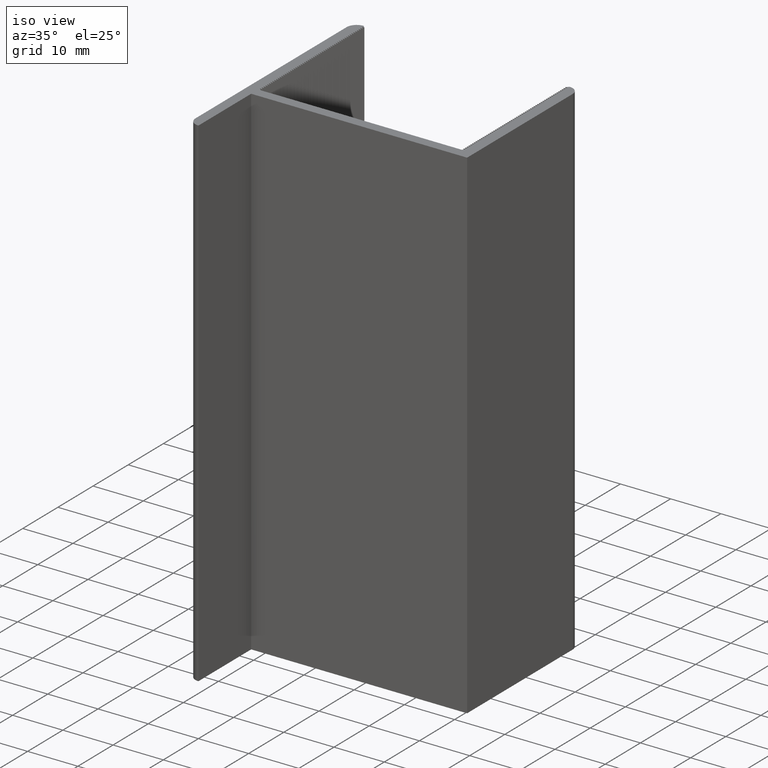
[diagram: clean part render]
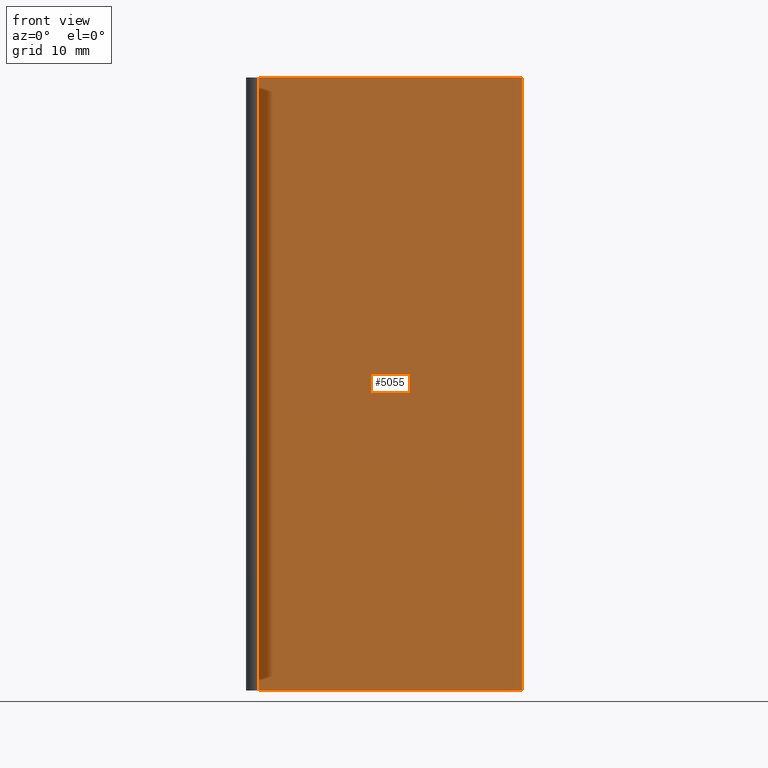
[diagram: tour spotlight — one face highlighted and labeled with its STEP entity id]
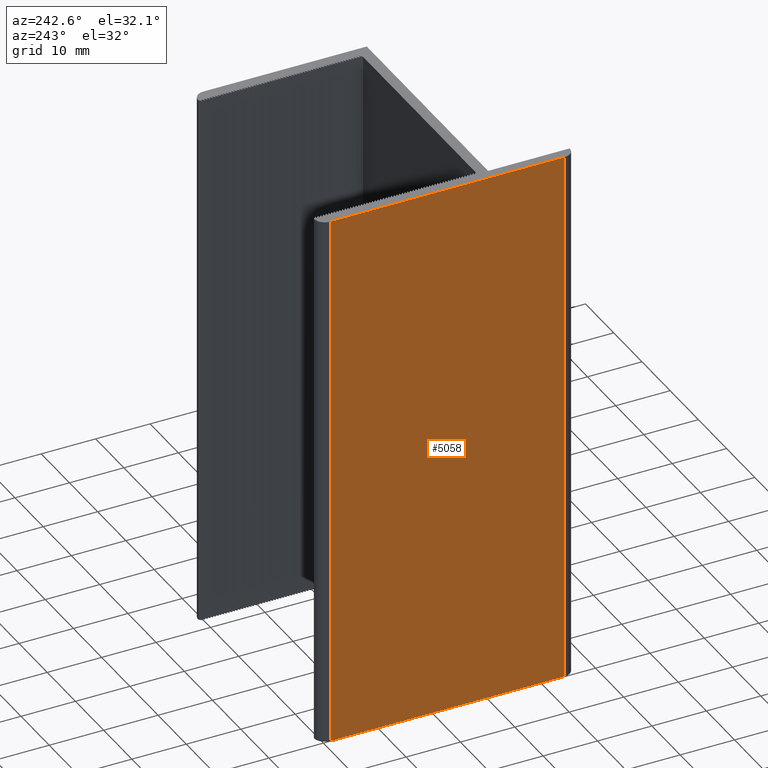
[diagram: tour spotlight — one face highlighted and labeled with its STEP entity id]
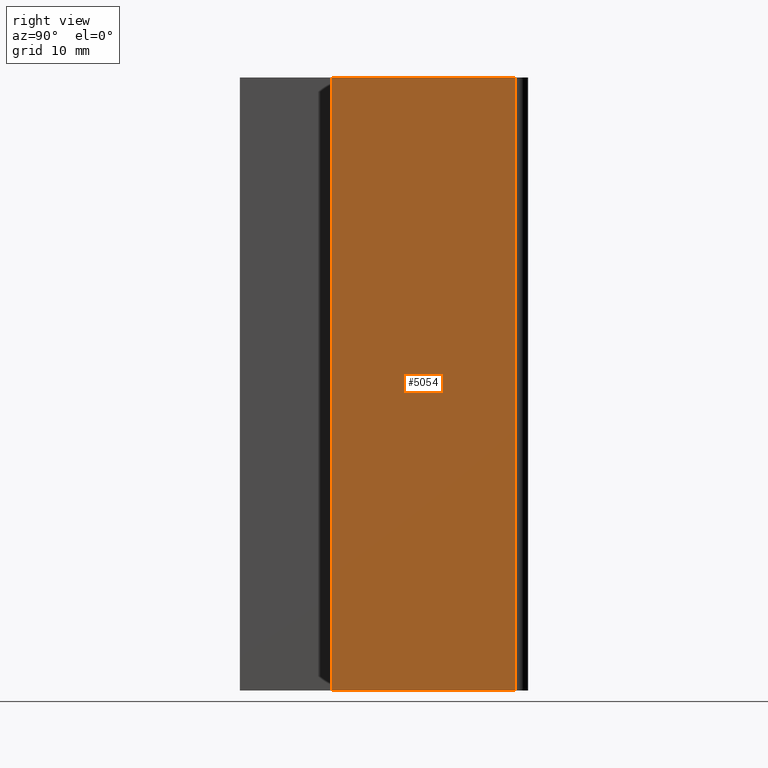
[diagram: tour spotlight — one face highlighted and labeled with its STEP entity id]
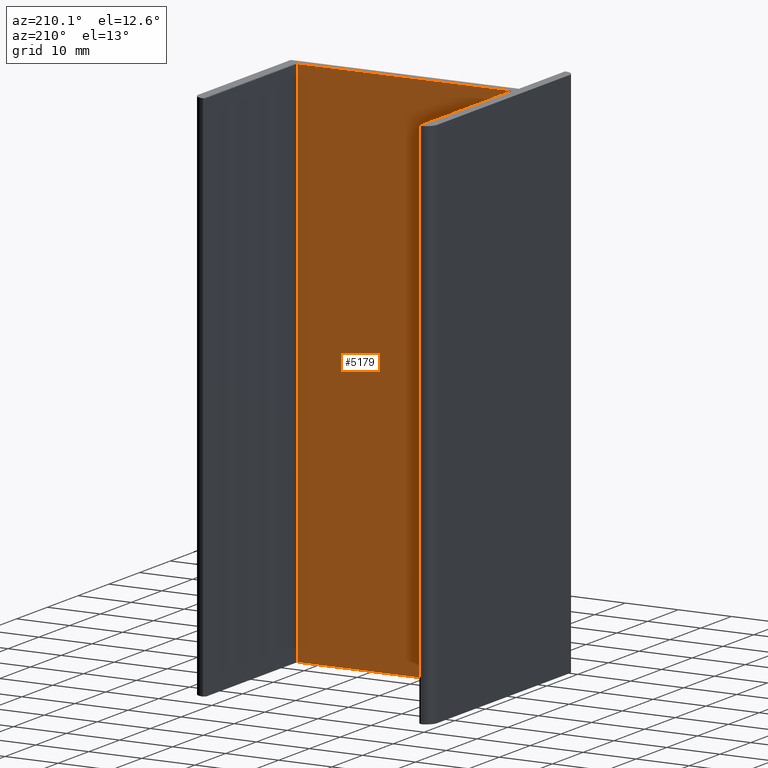
[diagram: tour spotlight — one face highlighted and labeled with its STEP entity id]
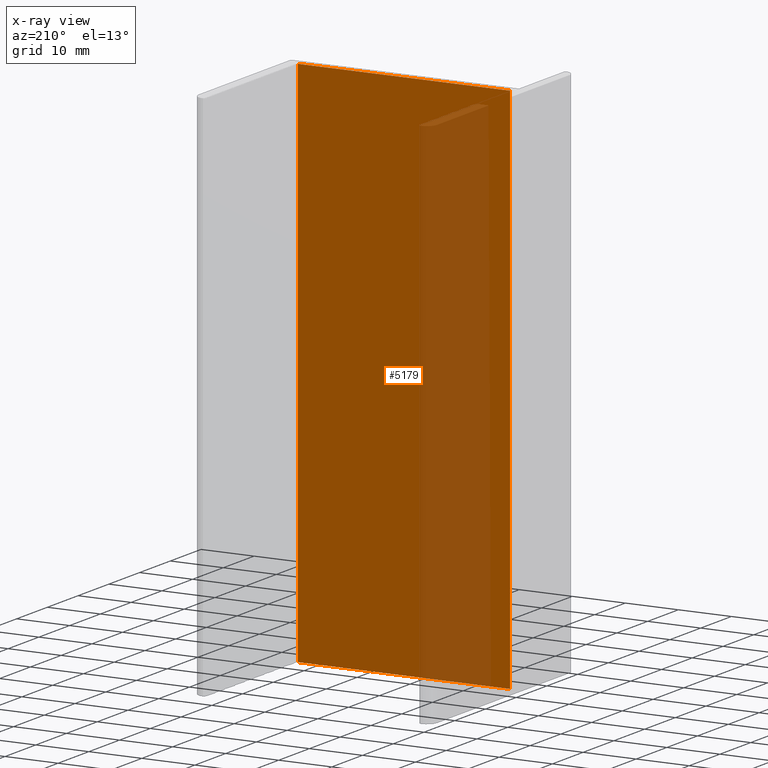
[diagram: x-ray of the same camera — body ghosted, this tour face saturated]
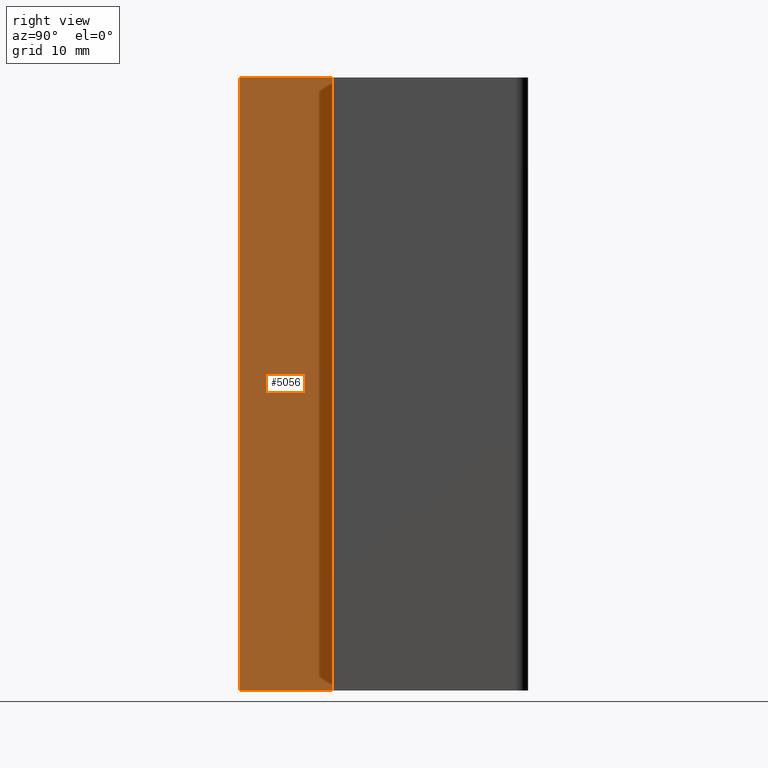
[diagram: tour spotlight — one face highlighted and labeled with its STEP entity id]
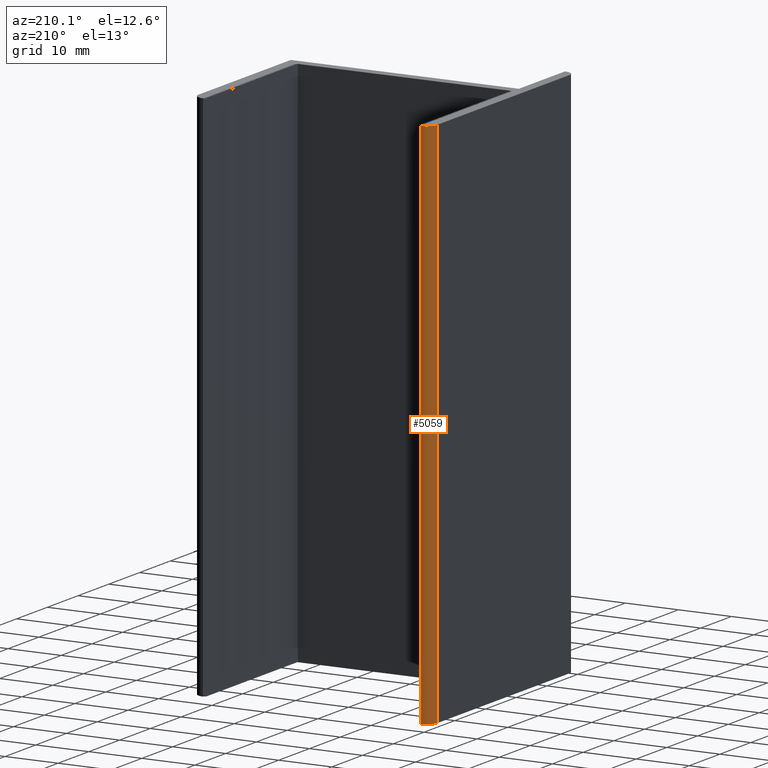
[diagram: tour spotlight — one face highlighted and labeled with its STEP entity id]
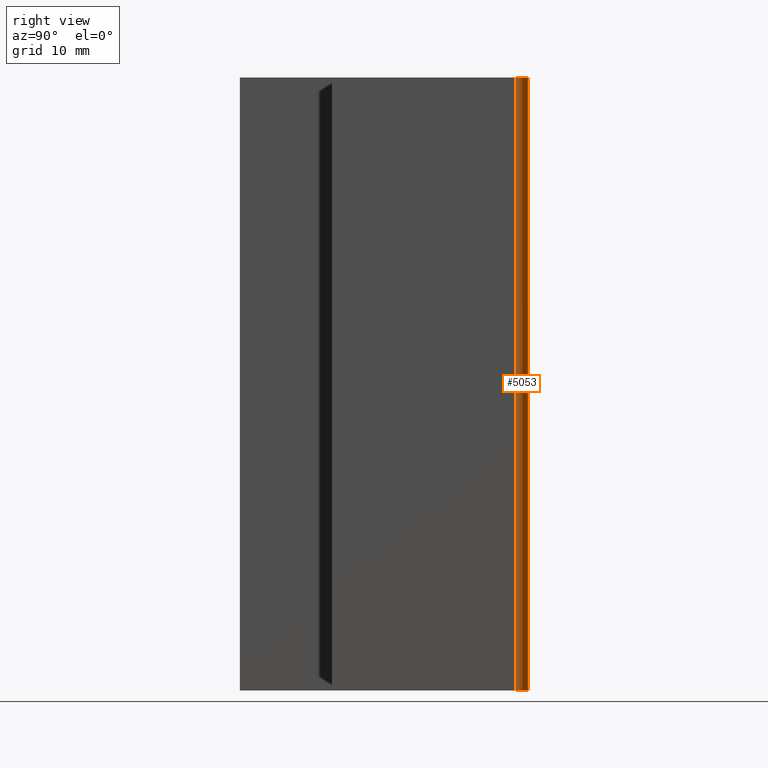
[diagram: tour spotlight — one face highlighted and labeled with its STEP entity id]
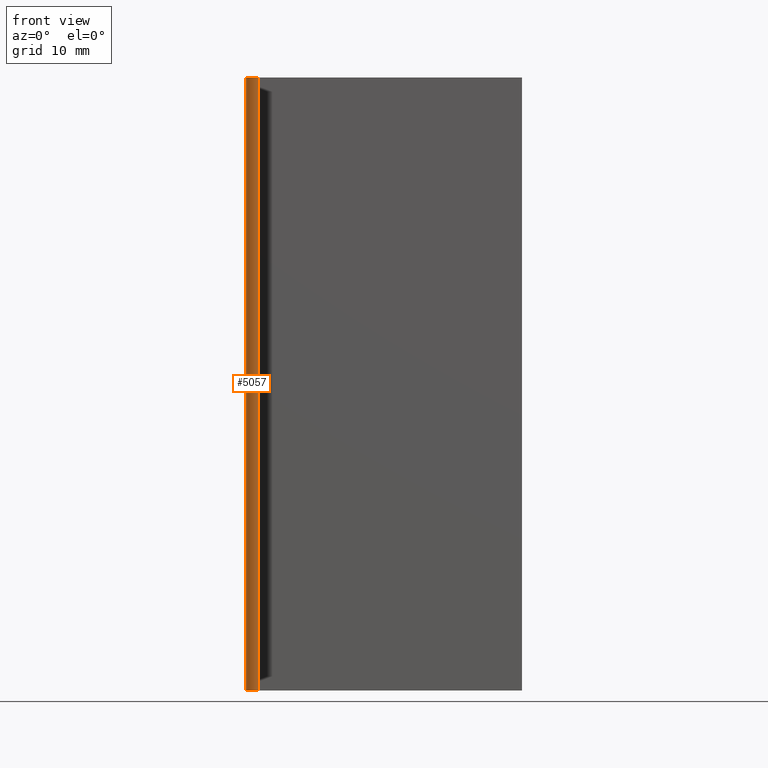
[diagram: tour spotlight — one face highlighted and labeled with its STEP entity id]
A machine part: a face-by-face anatomy tour. The part has 248 B-rep faces; the first image is the clean iso view, then the 8 largest visible faces are spotlighted one at a time (largest first), each with its STEP entity span.

Face 1 — front view, entity #5055. In plain terms, the highlighted planar face has unit normal (0, -1, 0).
Definition (entity closure, byte-faithful):
#144=FACE_OUTER_BOUND('',#392,.T.);
#392=EDGE_LOOP('',(#3694,#3695,#3696,#3697));
#878=LINE('',#7404,#1610);
#879=LINE('',#7407,#1611);
#880=LINE('',#7409,#1612);
#881=LINE('',#7410,#1613);
#1610=VECTOR('',#6043,100.);
#1611=VECTOR('',#6046,43.);
#1612=VECTOR('',#6047,43.);
#1613=VECTOR('',#6048,100.);
#2224=VERTEX_POINT('',#7400);
#2225=VERTEX_POINT('',#7402);
#2226=VERTEX_POINT('',#7406);
#2227=VERTEX_POINT('',#7408);
#2836=EDGE_CURVE('',#2224,#2225,#878,.T.);
#2837=EDGE_CURVE('',#2224,#2226,#879,.T.);
#2838=EDGE_CURVE('',#2227,#2225,#880,.T.);
#2839=EDGE_CURVE('',#2226,#2227,#881,.T.);
#3694=ORIENTED_EDGE('',*,*,#2837,.F.);
#3695=ORIENTED_EDGE('',*,*,#2836,.T.);
#3696=ORIENTED_EDGE('',*,*,#2838,.F.);
#3697=ORIENTED_EDGE('',*,*,#2839,.F.);
#4809=PLANE('',#5307);
#5055=ADVANCED_FACE('',(#144),#4809,.T.);
#5307=AXIS2_PLACEMENT_3D('',#7405,#6044,#6045);
#6043=DIRECTION('',(0.,0.,1.));
#6044=DIRECTION('center_axis',(0.,-1.,0.));
#6045=DIRECTION('ref_axis',(1.,0.,0.));
#6046=DIRECTION('',(-1.,0.,0.));
#6047=DIRECTION('',(1.,0.,0.));
#6048=DIRECTION('',(0.,0.,1.));
#7400=CARTESIAN_POINT('',(22.5,0.,0.));
#7402=CARTESIAN_POINT('',(22.5,0.,100.));
#7404=CARTESIAN_POINT('',(22.5,0.,0.));
#7405=CARTESIAN_POINT('Origin',(-20.5,0.,0.));
#7406=CARTESIAN_POINT('',(-20.5,0.,0.));
#7407=CARTESIAN_POINT('',(22.5,0.,0.));
#7408=CARTESIAN_POINT('',(-20.5,0.,100.));
#7409=CARTESIAN_POINT('',(22.5,0.,100.));
#7410=CARTESIAN_POINT('',(-20.5,0.,0.));

Face 2 — auxiliary view, entity #5058. In plain terms, the highlighted planar face has unit normal (-1, 0, 0).
Definition (entity closure, byte-faithful):
#147=FACE_OUTER_BOUND('',#395,.T.);
#395=EDGE_LOOP('',(#3706,#3707,#3708,#3709));
#885=LINE('',#7422,#1617);
#886=LINE('',#7425,#1618);
#887=LINE('',#7427,#1619);
#888=LINE('',#7428,#1620);
#1617=VECTOR('',#6060,100.);
#1618=VECTOR('',#6063,43.);
#1619=VECTOR('',#6064,43.);
#1620=VECTOR('',#6065,100.);
#2230=VERTEX_POINT('',#7418);
#2231=VERTEX_POINT('',#7420);
#2232=VERTEX_POINT('',#7424);
#2233=VERTEX_POINT('',#7426);
#2845=EDGE_CURVE('',#2230,#2231,#885,.T.);
#2846=EDGE_CURVE('',#2230,#2232,#886,.T.);
#2847=EDGE_CURVE('',#2233,#2231,#887,.T.);
#2848=EDGE_CURVE('',#2232,#2233,#888,.T.);
#3706=ORIENTED_EDGE('',*,*,#2846,.F.);
#3707=ORIENTED_EDGE('',*,*,#2845,.T.);
#3708=ORIENTED_EDGE('',*,*,#2847,.F.);
#3709=ORIENTED_EDGE('',*,*,#2848,.F.);
#4811=PLANE('',#5312);
#5058=ADVANCED_FACE('',(#147),#4811,.T.);
#5312=AXIS2_PLACEMENT_3D('',#7423,#6061,#6062);
#6060=DIRECTION('',(0.,0.,1.));
#6061=DIRECTION('center_axis',(-1.,0.,0.));
#6062=DIRECTION('ref_axis',(0.,-1.,0.));
#6063=DIRECTION('',(0.,1.,0.));
#6064=DIRECTION('',(0.,-1.,0.));
#6065=DIRECTION('',(0.,0.,1.));
#7418=CARTESIAN_POINT('',(-22.5,-13.,0.));
#7420=CARTESIAN_POINT('',(-22.5,-13.,100.));
#7422=CARTESIAN_POINT('',(-22.5,-13.,0.));
#7423=CARTESIAN_POINT('Origin',(-22.5,30.,0.));
#7424=CARTESIAN_POINT('',(-22.5,30.,0.));
#7425=CARTESIAN_POINT('',(-22.5,-13.,0.));
#7426=CARTESIAN_POINT('',(-22.5,30.,100.));
#7427=CARTESIAN_POINT('',(-22.5,-13.,100.));
#7428=CARTESIAN_POINT('',(-22.5,30.,0.));

Face 3 — right view, entity #5054. In plain terms, the highlighted planar face has unit normal (1, 0, 0).
Definition (entity closure, byte-faithful):
#143=FACE_OUTER_BOUND('',#391,.T.);
#391=EDGE_LOOP('',(#3690,#3691,#3692,#3693));
#875=LINE('',#7398,#1607);
#876=LINE('',#7401,#1608);
#877=LINE('',#7403,#1609);
#878=LINE('',#7404,#1610);
#1607=VECTOR('',#6038,100.);
#1608=VECTOR('',#6041,30.);
#1609=VECTOR('',#6042,30.);
#1610=VECTOR('',#6043,100.);
#2222=VERTEX_POINT('',#7394);
#2223=VERTEX_POINT('',#7396);
#2224=VERTEX_POINT('',#7400);
#2225=VERTEX_POINT('',#7402);
#2833=EDGE_CURVE('',#2222,#2223,#875,.T.);
#2834=EDGE_CURVE('',#2222,#2224,#876,.T.);
#2835=EDGE_CURVE('',#2225,#2223,#877,.T.);
#2836=EDGE_CURVE('',#2224,#2225,#878,.T.);
#3690=ORIENTED_EDGE('',*,*,#2834,.F.);
#3691=ORIENTED_EDGE('',*,*,#2833,.T.);
#3692=ORIENTED_EDGE('',*,*,#2835,.F.);
#3693=ORIENTED_EDGE('',*,*,#2836,.F.);
#4808=PLANE('',#5306);
#5054=ADVANCED_FACE('',(#143),#4808,.T.);
#5306=AXIS2_PLACEMENT_3D('',#7399,#6039,#6040);
#6038=DIRECTION('',(0.,0.,1.));
#6039=DIRECTION('center_axis',(1.,0.,0.));
#6040=DIRECTION('ref_axis',(0.,1.,0.));
#6041=DIRECTION('',(0.,-1.,0.));
#6042=DIRECTION('',(0.,1.,0.));
#6043=DIRECTION('',(0.,0.,1.));
#7394=CARTESIAN_POINT('',(22.5,30.,0.));
#7396=CARTESIAN_POINT('',(22.5,30.,100.));
#7398=CARTESIAN_POINT('',(22.5,30.,0.));
#7399=CARTESIAN_POINT('Origin',(22.5,0.,0.));
#7400=CARTESIAN_POINT('',(22.5,0.,0.));
#7401=CARTESIAN_POINT('',(22.5,30.,0.));
#7402=CARTESIAN_POINT('',(22.5,0.,100.));
#7403=CARTESIAN_POINT('',(22.5,30.,100.));
#7404=CARTESIAN_POINT('',(22.5,0.,0.));

Face 4 — auxiliary view, entity #5179. An x-ray twin of the same camera follows (body ghosted, this face saturated) — the face is partly hidden behind the body. In plain terms, the highlighted planar face has unit normal (0, 1, 0).
Definition (entity closure, byte-faithful):
#268=FACE_OUTER_BOUND('',#516,.T.);
#516=EDGE_LOOP('',(#4190,#4191,#4192,#4193));
#1246=LINE('',#8148,#1978);
#1247=LINE('',#8151,#1979);
#1248=LINE('',#8153,#1980);
#1249=LINE('',#8154,#1981);
#1978=VECTOR('',#6667,100.);
#1979=VECTOR('',#6670,40.);
#1980=VECTOR('',#6671,40.);
#1981=VECTOR('',#6672,100.);
#2472=VERTEX_POINT('',#8144);
#2473=VERTEX_POINT('',#8146);
#2474=VERTEX_POINT('',#8150);
#2475=VERTEX_POINT('',#8152);
#3208=EDGE_CURVE('',#2472,#2473,#1246,.T.);
#3209=EDGE_CURVE('',#2472,#2474,#1247,.T.);
#3210=EDGE_CURVE('',#2475,#2473,#1248,.T.);
#3211=EDGE_CURVE('',#2474,#2475,#1249,.T.);
#4190=ORIENTED_EDGE('',*,*,#3209,.F.);
#4191=ORIENTED_EDGE('',*,*,#3208,.T.);
#4192=ORIENTED_EDGE('',*,*,#3210,.F.);
#4193=ORIENTED_EDGE('',*,*,#3211,.F.);
#4931=PLANE('',#5435);
#5179=ADVANCED_FACE('',(#268),#4931,.T.);
#5435=AXIS2_PLACEMENT_3D('',#8149,#6668,#6669);
#6667=DIRECTION('',(0.,0.,1.));
#6668=DIRECTION('center_axis',(0.,1.,0.));
#6669=DIRECTION('ref_axis',(-1.,0.,0.));
#6670=DIRECTION('',(1.,0.,0.));
#6671=DIRECTION('',(-1.,0.,0.));
#6672=DIRECTION('',(0.,0.,1.));
#8144=CARTESIAN_POINT('',(-20.,2.,0.));
#8146=CARTESIAN_POINT('',(-20.,2.,100.));
#8148=CARTESIAN_POINT('',(-20.,2.,0.));
#8149=CARTESIAN_POINT('Origin',(20.,2.,0.));
#8150=CARTESIAN_POINT('',(20.,2.,0.));
#8151=CARTESIAN_POINT('',(-20.,2.,0.));
#8152=CARTESIAN_POINT('',(20.,2.,100.));
#8153=CARTESIAN_POINT('',(-20.,2.,100.));
#8154=CARTESIAN_POINT('',(20.,2.,0.));

Face 5 — right view, entity #5056. In plain terms, the highlighted planar face has unit normal (1, 0, 0).
Definition (entity closure, byte-faithful):
#145=FACE_OUTER_BOUND('',#393,.T.);
#393=EDGE_LOOP('',(#3698,#3699,#3700,#3701));
#881=LINE('',#7410,#1613);
#882=LINE('',#7413,#1614);
#883=LINE('',#7415,#1615);
#884=LINE('',#7416,#1616);
#1613=VECTOR('',#6048,100.);
#1614=VECTOR('',#6051,15.);
#1615=VECTOR('',#6052,15.);
#1616=VECTOR('',#6053,100.);
#2226=VERTEX_POINT('',#7406);
#2227=VERTEX_POINT('',#7408);
#2228=VERTEX_POINT('',#7412);
#2229=VERTEX_POINT('',#7414);
#2839=EDGE_CURVE('',#2226,#2227,#881,.T.);
#2840=EDGE_CURVE('',#2226,#2228,#882,.T.);
#2841=EDGE_CURVE('',#2229,#2227,#883,.T.);
#2842=EDGE_CURVE('',#2228,#2229,#884,.T.);
#3698=ORIENTED_EDGE('',*,*,#2840,.F.);
#3699=ORIENTED_EDGE('',*,*,#2839,.T.);
#3700=ORIENTED_EDGE('',*,*,#2841,.F.);
#3701=ORIENTED_EDGE('',*,*,#2842,.F.);
#4810=PLANE('',#5308);
#5056=ADVANCED_FACE('',(#145),#4810,.T.);
#5308=AXIS2_PLACEMENT_3D('',#7411,#6049,#6050);
#6048=DIRECTION('',(0.,0.,1.));
#6049=DIRECTION('center_axis',(1.,0.,0.));
#6050=DIRECTION('ref_axis',(0.,1.,0.));
#6051=DIRECTION('',(0.,-1.,0.));
#6052=DIRECTION('',(0.,1.,0.));
#6053=DIRECTION('',(0.,0.,1.));
#7406=CARTESIAN_POINT('',(-20.5,0.,0.));
#7408=CARTESIAN_POINT('',(-20.5,0.,100.));
#7410=CARTESIAN_POINT('',(-20.5,0.,0.));
#7411=CARTESIAN_POINT('Origin',(-20.5,-15.,0.));
#7412=CARTESIAN_POINT('',(-20.5,-15.,0.));
#7413=CARTESIAN_POINT('',(-20.5,0.,0.));
#7414=CARTESIAN_POINT('',(-20.5,-15.,100.));
#7415=CARTESIAN_POINT('',(-20.5,0.,100.));
#7416=CARTESIAN_POINT('',(-20.5,-15.,0.));

Face 6 — auxiliary view, entity #5059. In plain terms, the highlighted cylindrical surface (edge-blend (fillet) strip) has radius 2 mm, axis along (0, 0, 1).
Definition (entity closure, byte-faithful):
#19=CIRCLE('',#5314,2.);
#20=CIRCLE('',#5315,2.);
#23=CYLINDRICAL_SURFACE('',#5313,2.);
#148=FACE_OUTER_BOUND('',#396,.T.);
#396=EDGE_LOOP('',(#3710,#3711,#3712,#3713));
#888=LINE('',#7428,#1620);
#889=LINE('',#7434,#1621);
#1620=VECTOR('',#6065,100.);
#1621=VECTOR('',#6072,100.);
#2232=VERTEX_POINT('',#7424);
#2233=VERTEX_POINT('',#7426);
#2234=VERTEX_POINT('',#7430);
#2235=VERTEX_POINT('',#7432);
#2848=EDGE_CURVE('',#2232,#2233,#888,.T.);
#2849=EDGE_CURVE('',#2232,#2234,#19,.T.);
#2850=EDGE_CURVE('',#2235,#2233,#20,.T.);
#2851=EDGE_CURVE('',#2234,#2235,#889,.T.);
#3710=ORIENTED_EDGE('',*,*,#2849,.F.);
#3711=ORIENTED_EDGE('',*,*,#2848,.T.);
#3712=ORIENTED_EDGE('',*,*,#2850,.F.);
#3713=ORIENTED_EDGE('',*,*,#2851,.F.);
#5059=ADVANCED_FACE('',(#148),#23,.T.);
#5313=AXIS2_PLACEMENT_3D('',#7429,#6066,#6067);
#5314=AXIS2_PLACEMENT_3D('',#7431,#6068,#6069);
#5315=AXIS2_PLACEMENT_3D('',#7433,#6070,#6071);
#6065=DIRECTION('',(0.,0.,1.));
#6066=DIRECTION('center_axis',(0.,0.,1.));
#6067=DIRECTION('ref_axis',(0.,-1.,0.));
#6068=DIRECTION('center_axis',(0.,0.,-1.));
#6069=DIRECTION('ref_axis',(0.,-1.,0.));
#6070=DIRECTION('center_axis',(0.,0.,1.));
#6071=DIRECTION('ref_axis',(0.,-1.,0.));
#6072=DIRECTION('',(0.,0.,1.));
#7424=CARTESIAN_POINT('',(-22.5,30.,0.));
#7426=CARTESIAN_POINT('',(-22.5,30.,100.));
#7428=CARTESIAN_POINT('',(-22.5,30.,0.));
#7429=CARTESIAN_POINT('Origin',(-20.5,30.,0.));
#7430=CARTESIAN_POINT('',(-20.5,32.,0.));
#7431=CARTESIAN_POINT('Origin',(-20.5,30.,0.));
#7432=CARTESIAN_POINT('',(-20.5,32.,100.));
#7433=CARTESIAN_POINT('Origin',(-20.5,30.,100.));
#7434=CARTESIAN_POINT('',(-20.5,32.,0.));

Face 7 — right view, entity #5053. In plain terms, the highlighted cylindrical surface (edge-blend (fillet) strip) has radius 2 mm, axis along (0, 0, 1).
Definition (entity closure, byte-faithful):
#15=CIRCLE('',#5304,2.);
#16=CIRCLE('',#5305,2.);
#21=CYLINDRICAL_SURFACE('',#5303,2.);
#142=FACE_OUTER_BOUND('',#390,.T.);
#390=EDGE_LOOP('',(#3686,#3687,#3688,#3689));
#874=LINE('',#7392,#1606);
#875=LINE('',#7398,#1607);
#1606=VECTOR('',#6031,100.);
#1607=VECTOR('',#6038,100.);
#2220=VERTEX_POINT('',#7388);
#2221=VERTEX_POINT('',#7390);
#2222=VERTEX_POINT('',#7394);
#2223=VERTEX_POINT('',#7396);
#2830=EDGE_CURVE('',#2220,#2221,#874,.T.);
#2831=EDGE_CURVE('',#2220,#2222,#15,.T.);
#2832=EDGE_CURVE('',#2223,#2221,#16,.T.);
#2833=EDGE_CURVE('',#2222,#2223,#875,.T.);
#3686=ORIENTED_EDGE('',*,*,#2831,.F.);
#3687=ORIENTED_EDGE('',*,*,#2830,.T.);
#3688=ORIENTED_EDGE('',*,*,#2832,.F.);
#3689=ORIENTED_EDGE('',*,*,#2833,.F.);
#5053=ADVANCED_FACE('',(#142),#21,.T.);
#5303=AXIS2_PLACEMENT_3D('',#7393,#6032,#6033);
#5304=AXIS2_PLACEMENT_3D('',#7395,#6034,#6035);
#5305=AXIS2_PLACEMENT_3D('',#7397,#6036,#6037);
#6031=DIRECTION('',(0.,0.,1.));
#6032=DIRECTION('center_axis',(0.,0.,1.));
#6033=DIRECTION('ref_axis',(-1.,0.,0.));
#6034=DIRECTION('center_axis',(0.,0.,-1.));
#6035=DIRECTION('ref_axis',(-1.,0.,0.));
#6036=DIRECTION('center_axis',(0.,0.,1.));
#6037=DIRECTION('ref_axis',(-1.,0.,0.));
#6038=DIRECTION('',(0.,0.,1.));
#7388=CARTESIAN_POINT('',(20.5,32.,0.));
#7390=CARTESIAN_POINT('',(20.5,32.,100.));
#7392=CARTESIAN_POINT('',(20.5,32.,0.));
#7393=CARTESIAN_POINT('Origin',(20.5,30.,0.));
#7394=CARTESIAN_POINT('',(22.5,30.,0.));
#7395=CARTESIAN_POINT('Origin',(20.5,30.,0.));
#7396=CARTESIAN_POINT('',(22.5,30.,100.));
#7397=CARTESIAN_POINT('Origin',(20.5,30.,100.));
#7398=CARTESIAN_POINT('',(22.5,30.,0.));

Face 8 — front view, entity #5057. In plain terms, the highlighted cylindrical surface (edge-blend (fillet) strip) has radius 2 mm, axis along (0, 0, 1).
Definition (entity closure, byte-faithful):
#17=CIRCLE('',#5310,2.);
#18=CIRCLE('',#5311,2.);
#22=CYLINDRICAL_SURFACE('',#5309,2.);
#146=FACE_OUTER_BOUND('',#394,.T.);
#394=EDGE_LOOP('',(#3702,#3703,#3704,#3705));
#884=LINE('',#7416,#1616);
#885=LINE('',#7422,#1617);
#1616=VECTOR('',#6053,100.);
#1617=VECTOR('',#6060,100.);
#2228=VERTEX_POINT('',#7412);
#2229=VERTEX_POINT('',#7414);
#2230=VERTEX_POINT('',#7418);
#2231=VERTEX_POINT('',#7420);
#2842=EDGE_CURVE('',#2228,#2229,#884,.T.);
#2843=EDGE_CURVE('',#2228,#2230,#17,.T.);
#2844=EDGE_CURVE('',#2231,#2229,#18,.T.);
#2845=EDGE_CURVE('',#2230,#2231,#885,.T.);
#3702=ORIENTED_EDGE('',*,*,#2843,.F.);
#3703=ORIENTED_EDGE('',*,*,#2842,.T.);
#3704=ORIENTED_EDGE('',*,*,#2844,.F.);
#3705=ORIENTED_EDGE('',*,*,#2845,.F.);
#5057=ADVANCED_FACE('',(#146),#22,.T.);
#5309=AXIS2_PLACEMENT_3D('',#7417,#6054,#6055);
#5310=AXIS2_PLACEMENT_3D('',#7419,#6056,#6057);
#5311=AXIS2_PLACEMENT_3D('',#7421,#6058,#6059);
#6053=DIRECTION('',(0.,0.,1.));
#6054=DIRECTION('center_axis',(0.,0.,1.));
#6055=DIRECTION('ref_axis',(1.,0.,0.));
#6056=DIRECTION('center_axis',(0.,0.,-1.));
#6057=DIRECTION('ref_axis',(1.,0.,0.));
#6058=DIRECTION('center_axis',(0.,0.,1.));
#6059=DIRECTION('ref_axis',(1.,0.,0.));
#6060=DIRECTION('',(0.,0.,1.));
#7412=CARTESIAN_POINT('',(-20.5,-15.,0.));
#7414=CARTESIAN_POINT('',(-20.5,-15.,100.));
#7416=CARTESIAN_POINT('',(-20.5,-15.,0.));
#7417=CARTESIAN_POINT('Origin',(-20.5,-13.,0.));
#7418=CARTESIAN_POINT('',(-22.5,-13.,0.));
#7419=CARTESIAN_POINT('Origin',(-20.5,-13.,0.));
#7420=CARTESIAN_POINT('',(-22.5,-13.,100.));
#7421=CARTESIAN_POINT('Origin',(-20.5,-13.,100.));
#7422=CARTESIAN_POINT('',(-22.5,-13.,0.));